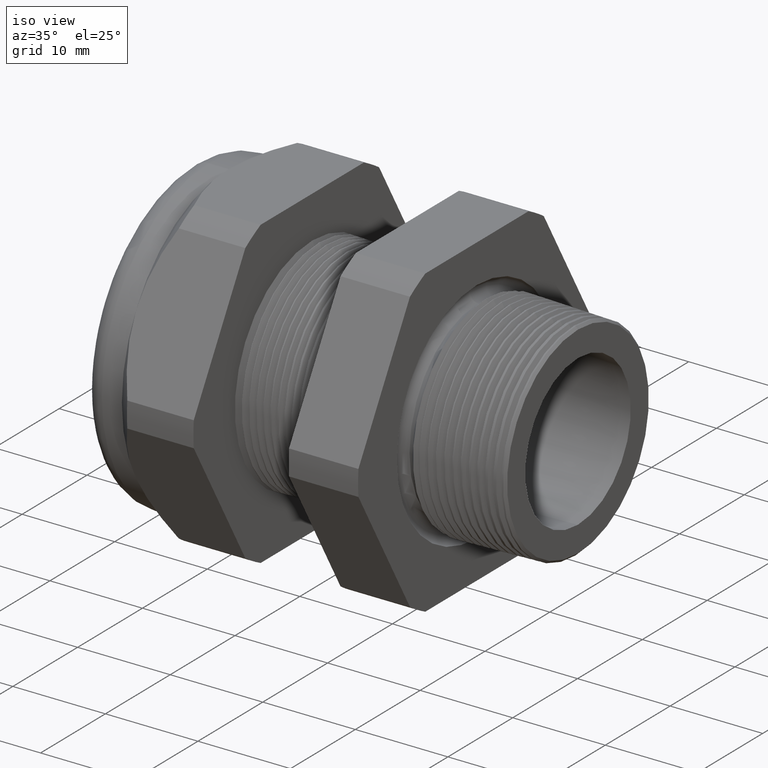
[diagram: clean part render]
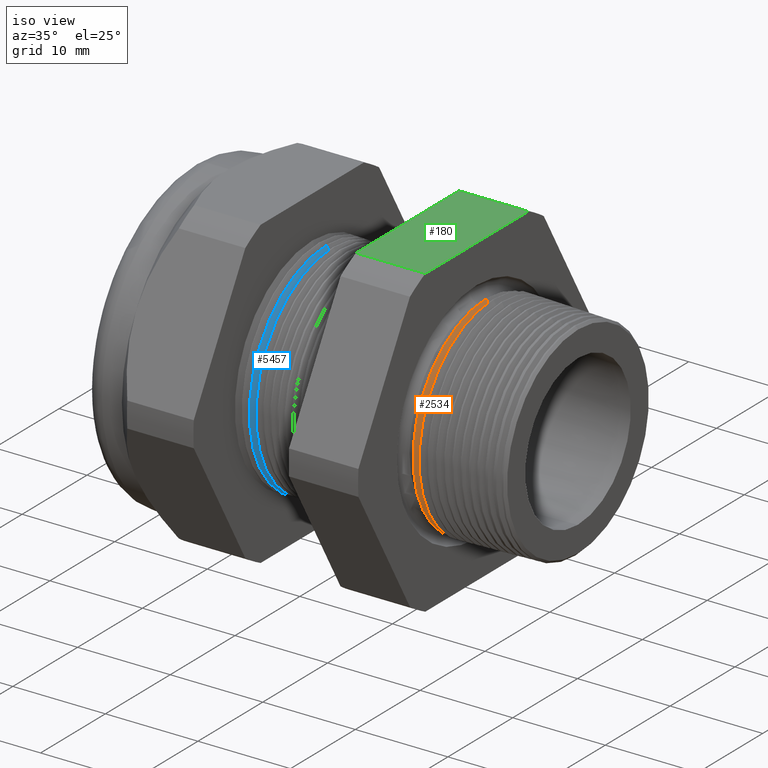
[diagram: same view with three faces highlighted in distinct colors, each labeled with its STEP entity id]
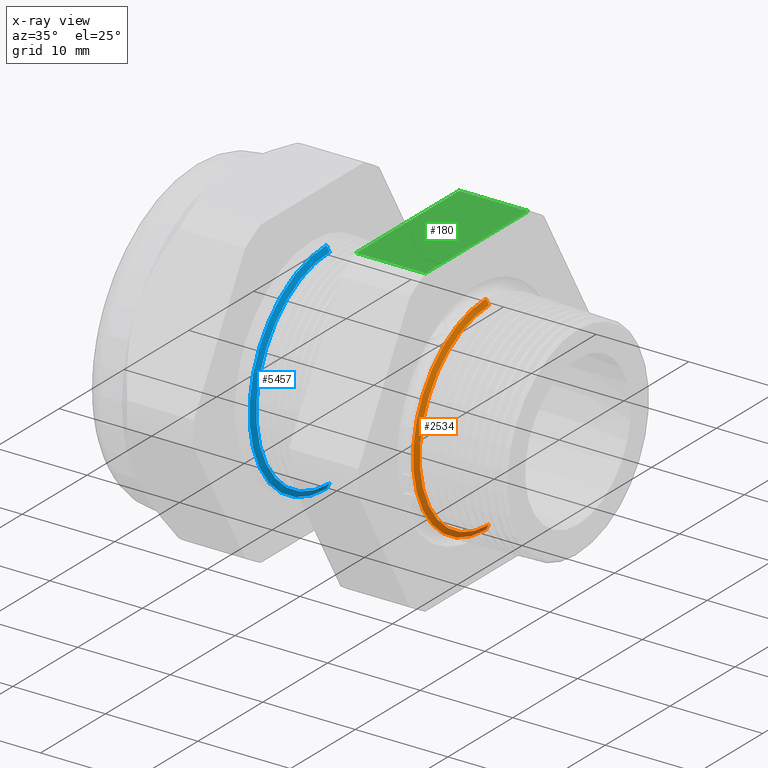
[diagram: x-ray of the same camera — body ghosted, the three highlighted faces saturated]
A machine part, iso view with three faces highlighted in distinct colors.
The next image is the same camera in x-ray (body ghosted, the three faces saturated) — at least one of them is partly hidden behind the body in this view.
Their STEP definitions:

[orange] entity #2534 — the highlighted conical surface has half-angle 61.5 deg.
#1687 = CARTESIAN_POINT ( 'NONE',  ( -0.2708463023710467300, 0.0000000000000000000, 0.4440114480048295600 ) ) ;
#2103 = DIRECTION ( 'NONE',  ( 0.0000000000000000000, 0.0000000000000000000, 1.000000000000000000 ) ) ;
#2104 = DIRECTION ( 'NONE',  ( 1.000000000000000000, 0.0000000000000000000, 0.0000000000000000000 ) ) ;
#2105 = CARTESIAN_POINT ( 'NONE',  ( -0.2708463023710467300, 0.0000000000000000000, 0.0000000000000000000 ) ) ;
#2106 = AXIS2_PLACEMENT_3D ( 'NONE', #2105, #2104, #2103 ) ;
#2107 = CIRCLE ( 'NONE', #2106, 0.4440114480048295600 ) ;
#2114 = CARTESIAN_POINT ( 'NONE',  ( -0.2584707356790751900, 5.298005367908164200E-017, -0.4212184895733915900 ) ) ;
#2115 = CARTESIAN_POINT ( 'NONE',  ( -0.2584707356790751900, 0.0000000000000000000, 0.4212184895733915900 ) ) ;
#2120 = DIRECTION ( 'NONE',  ( -0.4771587602596179000, 1.076240564057388100E-016, -0.8788171126619600500 ) ) ;
#2121 = VECTOR ( 'NONE', #2120, 39.37007874015748900 ) ;
#2122 = CARTESIAN_POINT ( 'NONE',  ( -0.2749999999999999700, 5.531259417600165900E-017, -0.4516616073672216100 ) ) ;
#2123 = LINE ( 'NONE', #2122, #2121 ) ;
#2124 = DIRECTION ( 'NONE',  ( -0.4771587602596179000, 0.0000000000000000000, 0.8788171126619600500 ) ) ;
#2125 = VECTOR ( 'NONE', #2124, 39.37007874015748900 ) ;
#2126 = CARTESIAN_POINT ( 'NONE',  ( -0.2749999999999999700, 0.0000000000000000000, 0.4516616073672216100 ) ) ;
#2127 = LINE ( 'NONE', #2126, #2125 ) ;
#2251 = VERTEX_POINT ( 'NONE', #4526 ) ;
#2523 = EDGE_CURVE ( 'NONE', #5498, #5499, #4967, .T. ) ;
#2530 = ORIENTED_EDGE ( 'NONE', *, *, #2523, .F. ) ;
#2531 = ORIENTED_EDGE ( 'NONE', *, *, #5493, .F. ) ;
#2532 = EDGE_LOOP ( 'NONE', ( #2531, #2530, #2551, #2552 ) ) ;
#2534 = ADVANCED_FACE ( 'NONE', ( #4954 ), #4953, .T. ) ;
#2551 = ORIENTED_EDGE ( 'NONE', *, *, #5490, .T. ) ;
#2552 = ORIENTED_EDGE ( 'NONE', *, *, #5473, .T. ) ;
#4526 = CARTESIAN_POINT ( 'NONE',  ( -0.2708463023710467300, 5.437571985838959600E-017, -0.4440114480048295600 ) ) ;
#4949 = DIRECTION ( 'NONE',  ( 0.0000000000000000000, 0.0000000000000000000, 1.000000000000000000 ) ) ;
#4950 = DIRECTION ( 'NONE',  ( -1.000000000000000000, 0.0000000000000000000, 0.0000000000000000000 ) ) ;
#4951 = CARTESIAN_POINT ( 'NONE',  ( -0.2749999999999999700, 0.0000000000000000000, 0.0000000000000000000 ) ) ;
#4952 = AXIS2_PLACEMENT_3D ( 'NONE', #4951, #4950, #4949 ) ;
#4953 = CONICAL_SURFACE ( 'NONE', #4952, 0.4516616073672216100, 1.073377489976501800 ) ;
#4954 = FACE_OUTER_BOUND ( 'NONE', #2532, .T. ) ;
#4964 = DIRECTION ( 'NONE',  ( 0.0000000000000000000, 0.0000000000000000000, -1.000000000000000000 ) ) ;
#4965 = DIRECTION ( 'NONE',  ( 1.000000000000000000, 0.0000000000000000000, 0.0000000000000000000 ) ) ;
#4966 = AXIS2_PLACEMENT_3D ( 'NONE', #4971, #4965, #4964 ) ;
#4967 = CIRCLE ( 'NONE', #4966, 0.4212184895733915900 ) ;
#4971 = CARTESIAN_POINT ( 'NONE',  ( -0.2584707356790751900, 0.0000000000000000000, 0.0000000000000000000 ) ) ;
#5206 = VERTEX_POINT ( 'NONE', #1687 ) ;
#5473 = EDGE_CURVE ( 'NONE', #5206, #2251, #2107, .T. ) ;
#5490 = EDGE_CURVE ( 'NONE', #5498, #5206, #2127, .T. ) ;
#5493 = EDGE_CURVE ( 'NONE', #5499, #2251, #2123, .T. ) ;
#5498 = VERTEX_POINT ( 'NONE', #2115 ) ;
#5499 = VERTEX_POINT ( 'NONE', #2114 ) ;

[blue] entity #5457 — the highlighted conical surface has half-angle 61.5 deg.
#225 = VERTEX_POINT ( 'NONE', #3040 ) ;
#230 = VERTEX_POINT ( 'NONE', #3034 ) ;
#333 = EDGE_CURVE ( 'NONE', #225, #822, #3221, .T. ) ;
#522 = EDGE_CURVE ( 'NONE', #822, #819, #3592, .T. ) ;
#818 = EDGE_CURVE ( 'NONE', #230, #819, #4280, .T. ) ;
#819 = VERTEX_POINT ( 'NONE', #4275 ) ;
#822 = VERTEX_POINT ( 'NONE', #4269 ) ;
#1986 = CIRCLE ( 'NONE', #2049, 0.4446307351718083400 ) ;
#2046 = DIRECTION ( 'NONE',  ( 0.0000000000000000000, 0.0000000000000000000, -1.000000000000000000 ) ) ;
#2047 = DIRECTION ( 'NONE',  ( 1.000000000000000000, 0.0000000000000000000, 0.0000000000000000000 ) ) ;
#2048 = CARTESIAN_POINT ( 'NONE',  ( -0.9365405736958171100, 0.0000000000000000000, 0.0000000000000000000 ) ) ;
#2049 = AXIS2_PLACEMENT_3D ( 'NONE', #2048, #2047, #2046 ) ;
#2063 = DIRECTION ( 'NONE',  ( 0.0000000000000000000, 0.0000000000000000000, 1.000000000000000000 ) ) ;
#2064 = DIRECTION ( 'NONE',  ( -1.000000000000000000, 0.0000000000000000000, 0.0000000000000000000 ) ) ;
#2065 = CARTESIAN_POINT ( 'NONE',  ( -0.9503149606299211600, 0.0000000000000000000, 0.0000000000000000000 ) ) ;
#2066 = AXIS2_PLACEMENT_3D ( 'NONE', #2065, #2064, #2063 ) ;
#2068 = CONICAL_SURFACE ( 'NONE', #2066, 0.4699999999999999700, 1.073377489976499400 ) ;
#2069 = FACE_OUTER_BOUND ( 'NONE', #5446, .T. ) ;
#3034 = CARTESIAN_POINT ( 'NONE',  ( -0.9365405736958171100, 5.590738703805261400E-017, -0.4446307351718083400 ) ) ;
#3040 = CARTESIAN_POINT ( 'NONE',  ( -0.9365405736958171100, 0.0000000000000000000, 0.4446307351718083400 ) ) ;
#3218 = DIRECTION ( 'NONE',  ( -0.4771587602596201200, 0.0000000000000000000, 0.8788171126619589400 ) ) ;
#3219 = VECTOR ( 'NONE', #3218, 39.37007874015748100 ) ;
#3220 = CARTESIAN_POINT ( 'NONE',  ( -0.9503149606299211600, 0.0000000000000000000, 0.4699999999999999700 ) ) ;
#3221 = LINE ( 'NONE', #3220, #3219 ) ;
#3589 = DIRECTION ( 'NONE',  ( 0.0000000000000000000, 0.0000000000000000000, 1.000000000000000000 ) ) ;
#3590 = DIRECTION ( 'NONE',  ( 1.000000000000000000, 0.0000000000000000000, 0.0000000000000000000 ) ) ;
#3591 = AXIS2_PLACEMENT_3D ( 'NONE', #3597, #3590, #3589 ) ;
#3592 = CIRCLE ( 'NONE', #3591, 0.4684061841583611600 ) ;
#3597 = CARTESIAN_POINT ( 'NONE',  ( -0.9494495892345292700, 0.0000000000000000000, 0.0000000000000000000 ) ) ;
#4269 = CARTESIAN_POINT ( 'NONE',  ( -0.9494495892345292700, 0.0000000000000000000, 0.4684061841583611600 ) ) ;
#4275 = CARTESIAN_POINT ( 'NONE',  ( -0.9494495892345292700, 5.736719239259559800E-017, -0.4684061841583611600 ) ) ;
#4276 = DIRECTION ( 'NONE',  ( -0.4771587602596201200, 1.076240564057387000E-016, -0.8788171126619589400 ) ) ;
#4277 = VECTOR ( 'NONE', #4276, 39.37007874015748100 ) ;
#4279 = CARTESIAN_POINT ( 'NONE',  ( -0.9503149606299211600, 5.755839955992559700E-017, -0.4699999999999999700 ) ) ;
#4280 = LINE ( 'NONE', #4279, #4277 ) ;
#5424 = ORIENTED_EDGE ( 'NONE', *, *, #333, .T. ) ;
#5428 = ORIENTED_EDGE ( 'NONE', *, *, #5432, .F. ) ;
#5429 = ORIENTED_EDGE ( 'NONE', *, *, #522, .T. ) ;
#5432 = EDGE_CURVE ( 'NONE', #225, #230, #1986, .T. ) ;
#5446 = EDGE_LOOP ( 'NONE', ( #5459, #5428, #5424, #5429 ) ) ;
#5457 = ADVANCED_FACE ( 'NONE', ( #2069 ), #2068, .T. ) ;
#5459 = ORIENTED_EDGE ( 'NONE', *, *, #818, .F. ) ;

[green] entity #180 — the highlighted planar face has unit normal (0, 0, 1).
#157 = ORIENTED_EDGE ( 'NONE', *, *, #187, .T. ) ;
#161 = EDGE_LOOP ( 'NONE', ( #157, #2456, #2458, #2454 ) ) ;
#180 = ADVANCED_FACE ( 'NONE', ( #2931 ), #2936, .T. ) ;
#187 = EDGE_CURVE ( 'NONE', #253, #398, #2985, .T. ) ;
#253 = VERTEX_POINT ( 'NONE', #3050 ) ;
#255 = EDGE_CURVE ( 'NONE', #253, #256, #3049, .T. ) ;
#256 = VERTEX_POINT ( 'NONE', #3107 ) ;
#395 = VERTEX_POINT ( 'NONE', #3335 ) ;
#397 = EDGE_CURVE ( 'NONE', #395, #398, #3334, .T. ) ;
#398 = VERTEX_POINT ( 'NONE', #3330 ) ;
#2454 = ORIENTED_EDGE ( 'NONE', *, *, #255, .F. ) ;
#2455 = EDGE_CURVE ( 'NONE', #256, #395, #4880, .T. ) ;
#2456 = ORIENTED_EDGE ( 'NONE', *, *, #397, .F. ) ;
#2458 = ORIENTED_EDGE ( 'NONE', *, *, #2455, .F. ) ;
#2927 = DIRECTION ( 'NONE',  ( 1.000000000000000000, 0.0000000000000000000, 0.0000000000000000000 ) ) ;
#2928 = DIRECTION ( 'NONE',  ( 0.0000000000000000000, 0.0000000000000000000, 1.000000000000000000 ) ) ;
#2929 = CARTESIAN_POINT ( 'NONE',  ( 0.1200000000000000900, -0.3131489262315937900, 0.6499999999999999100 ) ) ;
#2930 = AXIS2_PLACEMENT_3D ( 'NONE', #2929, #2928, #2927 ) ;
#2931 = FACE_OUTER_BOUND ( 'NONE', #161, .T. ) ;
#2936 = PLANE ( 'NONE',  #2930 ) ;
#2982 = DIRECTION ( 'NONE',  ( -1.000000000000000000, 0.0000000000000000000, 0.0000000000000000000 ) ) ;
#2983 = VECTOR ( 'NONE', #2982, 39.37007874015748100 ) ;
#2984 = CARTESIAN_POINT ( 'NONE',  ( 0.1200000000000000900, 0.3131489262315937900, 0.6499999999999999100 ) ) ;
#2985 = LINE ( 'NONE', #2984, #2983 ) ;
#3049 = LINE ( 'NONE', #3110, #3109 ) ;
#3050 = CARTESIAN_POINT ( 'NONE',  ( -0.3100000000000000000, 0.3131489262315937900, 0.6499999999999999100 ) ) ;
#3107 = CARTESIAN_POINT ( 'NONE',  ( -0.3100000000000000000, -0.3131489262315937400, 0.6500000000000000200 ) ) ;
#3108 = DIRECTION ( 'NONE',  ( 0.0000000000000000000, -1.000000000000000000, 0.0000000000000000000 ) ) ;
#3109 = VECTOR ( 'NONE', #3108, 39.37007874015748100 ) ;
#3110 = CARTESIAN_POINT ( 'NONE',  ( -0.3100000000000000000, 1.300000000000000000, 0.6499999999999999100 ) ) ;
#3330 = CARTESIAN_POINT ( 'NONE',  ( -0.6052755905511810800, 0.3131489262315937900, 0.6499999999999999100 ) ) ;
#3331 = DIRECTION ( 'NONE',  ( 0.0000000000000000000, 1.000000000000000000, 0.0000000000000000000 ) ) ;
#3332 = VECTOR ( 'NONE', #3331, 39.37007874015748100 ) ;
#3333 = CARTESIAN_POINT ( 'NONE',  ( -0.6052755905511809600, 1.300000000000000000, 0.6499999999999999100 ) ) ;
#3334 = LINE ( 'NONE', #3333, #3332 ) ;
#3335 = CARTESIAN_POINT ( 'NONE',  ( -0.6052755905511810800, -0.3131489262315937400, 0.6500000000000000200 ) ) ;
#4877 = DIRECTION ( 'NONE',  ( -1.000000000000000000, 0.0000000000000000000, 0.0000000000000000000 ) ) ;
#4878 = VECTOR ( 'NONE', #4877, 39.37007874015748100 ) ;
#4879 = CARTESIAN_POINT ( 'NONE',  ( 0.1200000000000000900, -0.3131489262315937400, 0.6500000000000000200 ) ) ;
#4880 = LINE ( 'NONE', #4879, #4878 ) ;